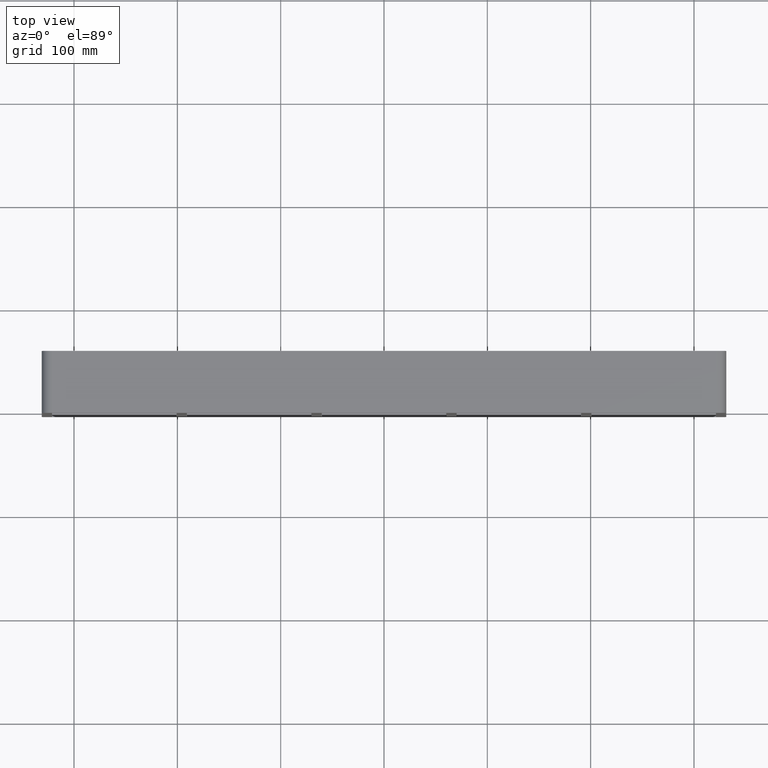
[diagram: clean part render]
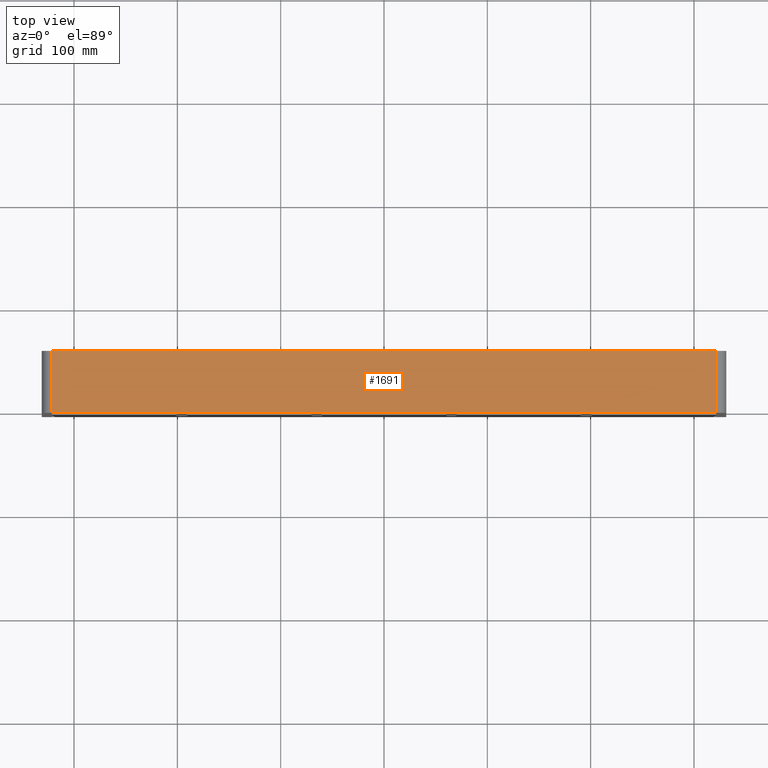
[diagram: same view with one face highlighted and labeled with its STEP entity id]
A machine part, top view. The second image highlights one B-rep face of the part: STEP entity #1691.
In plain terms, the highlighted planar face has unit normal (0, 0, 1).
Its self-contained STEP definition (entity closure, byte-faithful):
#678=CARTESIAN_POINT('',(321.25,-3.0,121.00000000000001));
#679=VERTEX_POINT('',#678);
#687=CARTESIAN_POINT('',(-321.25,-3.0,121.00000000000001));
#688=VERTEX_POINT('',#687);
#689=CARTESIAN_POINT('',(321.25,-3.0,121.00000000000001));
#690=DIRECTION('',(-1.0,0.0,0.0));
#691=VECTOR('',#690,642.5);
#692=LINE('',#689,#691);
#693=EDGE_CURVE('',#679,#688,#692,.T.);
#1044=CARTESIAN_POINT('',(-321.25,57.0,121.00000000000001));
#1045=VERTEX_POINT('',#1044);
#1053=CARTESIAN_POINT('',(321.25,57.0,121.00000000000001));
#1054=VERTEX_POINT('',#1053);
#1055=CARTESIAN_POINT('',(-321.25,57.0,121.00000000000001));
#1056=DIRECTION('',(1.0,0.0,0.0));
#1057=VECTOR('',#1056,642.5);
#1058=LINE('',#1055,#1057);
#1059=EDGE_CURVE('',#1045,#1054,#1058,.T.);
#1615=CARTESIAN_POINT('',(321.25,57.0,121.00000000000001));
#1616=DIRECTION('',(0.0,-1.0,0.0));
#1617=VECTOR('',#1616,60.0);
#1618=LINE('',#1615,#1617);
#1619=EDGE_CURVE('',#1054,#679,#1618,.T.);
#1671=CARTESIAN_POINT('',(-321.25,-3.0,121.00000000000001));
#1672=DIRECTION('',(0.0,1.0,0.0));
#1673=VECTOR('',#1672,60.0);
#1674=LINE('',#1671,#1673);
#1675=EDGE_CURVE('',#688,#1045,#1674,.T.);
#1680=CARTESIAN_POINT('',(-331.25,0.0,121.00000000000001));
#1681=DIRECTION('',(0.0,0.0,1.0));
#1682=DIRECTION('',(1.0,0.0,0.0));
#1683=AXIS2_PLACEMENT_3D('',#1680,#1681,#1682);
#1684=PLANE('',#1683);
#1685=ORIENTED_EDGE('',*,*,#1619,.F.);
#1686=ORIENTED_EDGE('',*,*,#1059,.F.);
#1687=ORIENTED_EDGE('',*,*,#1675,.F.);
#1688=ORIENTED_EDGE('',*,*,#693,.F.);
#1689=EDGE_LOOP('',(#1685,#1686,#1687,#1688));
#1690=FACE_OUTER_BOUND('',#1689,.T.);
#1691=ADVANCED_FACE('',(#1690),#1684,.T.);